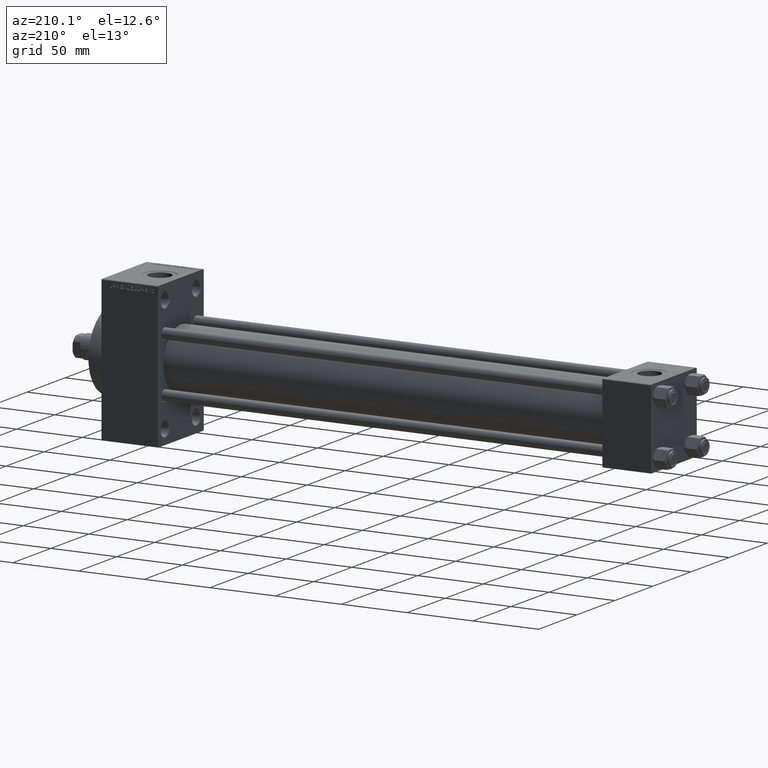
[diagram: clean part render]
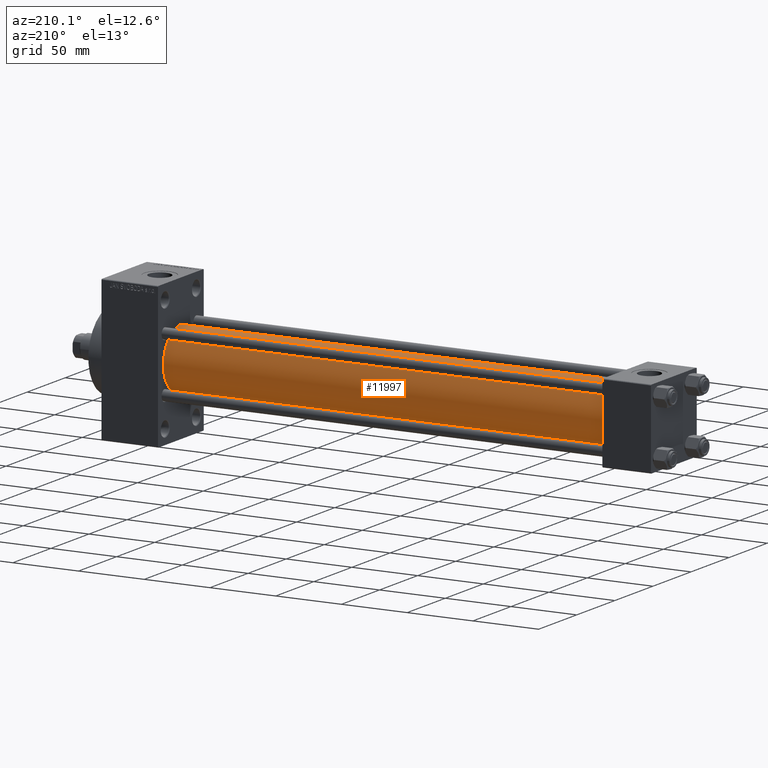
[diagram: same view with one face highlighted and labeled with its STEP entity id]
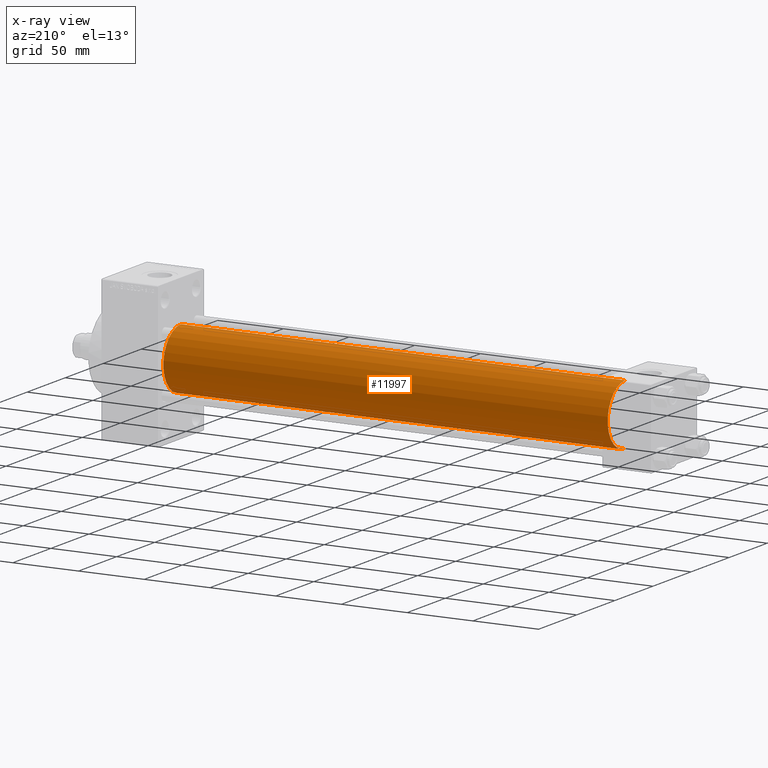
[diagram: x-ray of the same camera — body ghosted, the highlighted face saturated]
A machine part, auxiliary view. The second image highlights one B-rep face of the part: STEP entity #11997.
The next image is the same camera in x-ray: the body ghosted, the highlighted face saturated — about 0% of this face is hidden behind the body in this view.
In plain terms, the highlighted cylindrical surface (edge-blend (fillet) strip) has radius 23 mm, axis along (-1, -0, -0).
Its self-contained STEP definition (entity closure, byte-faithful):
#1167 = CIRCLE ( 'NONE', #9625, 23.00000000000000000 ) ;
#1512 = CARTESIAN_POINT ( 'NONE',  ( 375.0000000000000000, -2.602085213965210642E-15, 0.000000000000000000 ) ) ;
#2418 = ORIENTED_EDGE ( 'NONE', *, *, #29651, .T. ) ;
#4158 = EDGE_CURVE ( 'NONE', #18653, #28366, #1167, .T. ) ;
#5256 = LINE ( 'NONE', #31141, #9398 ) ;
#6176 = LINE ( 'NONE', #27740, #26885 ) ;
#8483 = DIRECTION ( 'NONE',  ( 0.000000000000000000, 0.000000000000000000, -1.000000000000000000 ) ) ;
#8538 = CARTESIAN_POINT ( 'NONE',  ( 36.99999999999997868, 2.146024240737016609E-16, -23.00000000000000000 ) ) ;
#8931 = VERTEX_POINT ( 'NONE', #42911 ) ;
#9398 = VECTOR ( 'NONE', #27063, 1000.000000000000000 ) ;
#9625 = AXIS2_PLACEMENT_3D ( 'NONE', #1512, #19737, #8483 ) ;
#9750 = AXIS2_PLACEMENT_3D ( 'NONE', #22731, #33523, #40716 ) ;
#11997 = ADVANCED_FACE ( 'NONE', ( #22875 ), #19031, .T. ) ;
#12550 = DIRECTION ( 'NONE',  ( -1.000000000000000000, -0.000000000000000000, -0.000000000000000000 ) ) ;
#14325 = CARTESIAN_POINT ( 'NONE',  ( 375.0000000000000000, 2.146024240737016609E-16, -23.00000000000000000 ) ) ;
#18653 = VERTEX_POINT ( 'NONE', #14325 ) ;
#19031 = CYLINDRICAL_SURFACE ( 'NONE', #41163, 23.00000000000000000 ) ;
#19737 = DIRECTION ( 'NONE',  ( 1.000000000000000000, 0.000000000000000000, 0.000000000000000000 ) ) ;
#20403 = EDGE_CURVE ( 'NONE', #28366, #8931, #5256, .T. ) ;
#20612 = ORIENTED_EDGE ( 'NONE', *, *, #4158, .F. ) ;
#22731 = CARTESIAN_POINT ( 'NONE',  ( 36.99999999999997868, -2.602085213965210642E-15, 0.000000000000000000 ) ) ;
#22875 = FACE_OUTER_BOUND ( 'NONE', #43570, .T. ) ;
#25106 = ORIENTED_EDGE ( 'NONE', *, *, #43925, .T. ) ;
#25777 = CIRCLE ( 'NONE', #9750, 23.00000000000000000 ) ;
#26221 = CARTESIAN_POINT ( 'NONE',  ( 375.0000000000000000, -2.602085213965210642E-15, 0.000000000000000000 ) ) ;
#26885 = VECTOR ( 'NONE', #35410, 1000.000000000000000 ) ;
#27063 = DIRECTION ( 'NONE',  ( -1.000000000000000000, -0.000000000000000000, -0.000000000000000000 ) ) ;
#27740 = CARTESIAN_POINT ( 'NONE',  ( 375.0000000000000000, 2.146024240737016609E-16, -23.00000000000000000 ) ) ;
#28366 = VERTEX_POINT ( 'NONE', #46634 ) ;
#29651 = EDGE_CURVE ( 'NONE', #34320, #8931, #25777, .T. ) ;
#30280 = DIRECTION ( 'NONE',  ( 0.000000000000000000, 0.000000000000000000, 1.000000000000000000 ) ) ;
#31141 = CARTESIAN_POINT ( 'NONE',  ( 375.0000000000000000, -2.602085213965210642E-15, 23.00000000000000000 ) ) ;
#33523 = DIRECTION ( 'NONE',  ( 1.000000000000000000, -0.000000000000000000, 0.000000000000000000 ) ) ;
#34320 = VERTEX_POINT ( 'NONE', #8538 ) ;
#35410 = DIRECTION ( 'NONE',  ( -1.000000000000000000, -0.000000000000000000, -0.000000000000000000 ) ) ;
#40716 = DIRECTION ( 'NONE',  ( 0.000000000000000000, 0.000000000000000000, 1.000000000000000000 ) ) ;
#40984 = ORIENTED_EDGE ( 'NONE', *, *, #20403, .F. ) ;
#41163 = AXIS2_PLACEMENT_3D ( 'NONE', #26221, #12550, #30280 ) ;
#42911 = CARTESIAN_POINT ( 'NONE',  ( 36.99999999999997868, -2.602085213965210642E-15, 23.00000000000000000 ) ) ;
#43570 = EDGE_LOOP ( 'NONE', ( #20612, #25106, #2418, #40984 ) ) ;
#43925 = EDGE_CURVE ( 'NONE', #18653, #34320, #6176, .T. ) ;
#46634 = CARTESIAN_POINT ( 'NONE',  ( 375.0000000000000000, -2.602085213965210642E-15, 23.00000000000000000 ) ) ;